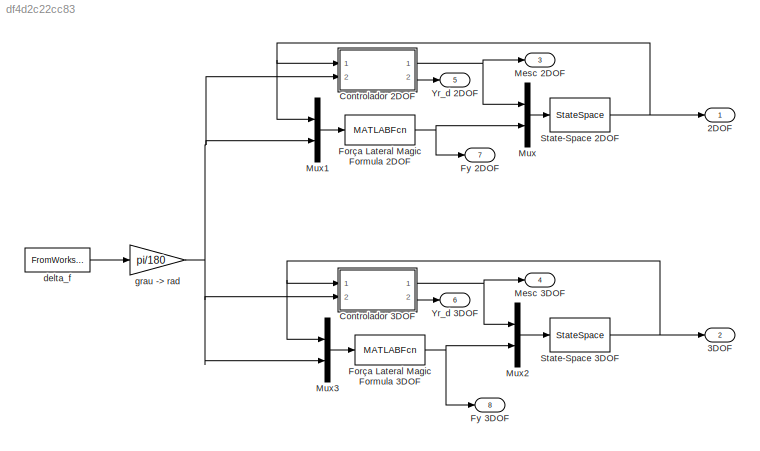
MODEL slx_df4d2c22cc83
KIND model
CONFIG AbsTol = auto
CONFIG FixedStep = auto
CONFIG MaxStep = auto
CONFIG MinStep = auto
CONFIG RelTol = 1e-3
CONFIG SampleTimeConstraint = Unconstrained
CONFIG Solver = VariableStepAuto
CONFIG SolverMode = Auto
CONFIG SolverName = VariableStepAuto
CONFIG StartTime = 0.0
CONFIG StopTime = 10
BLOCK [Outport] 2DOF
  IconDisplay = Port number
  LockScale = on
BLOCK [Outport] 3DOF
  IconDisplay = Port number
  Port = 2
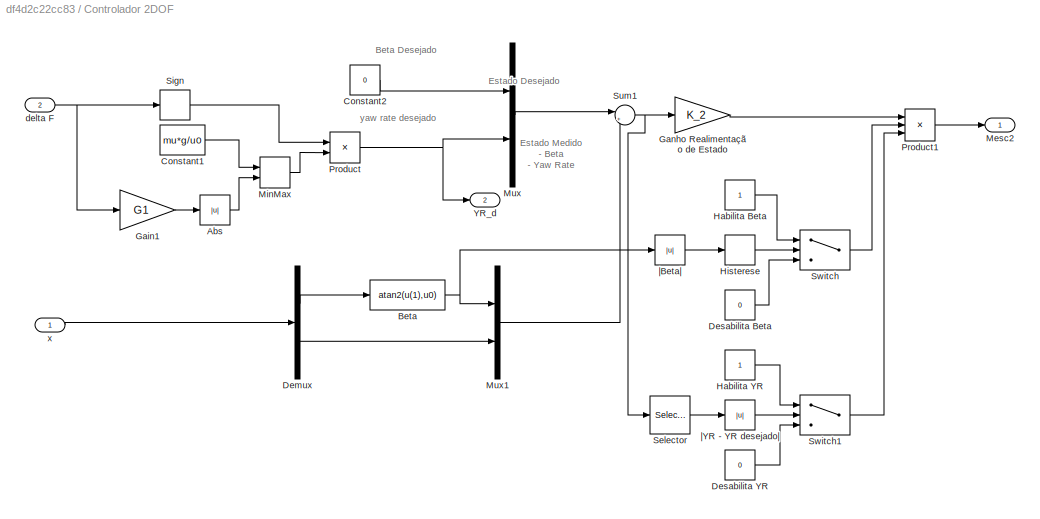
BLOCK [SubSystem] Controlador 2DOF
  Ports = [2, 2]
  RequestExecContextInheritance = off
  Variant = off
BLOCK [Abs] Controlador 2DOF/Abs
  SaturateOnIntegerOverflow = off
BLOCK [Fcn] Controlador 2DOF/Beta
  Expr = atan2(u(1),u0)
BLOCK [Constant] Controlador 2DOF/Constant1
  Value = mu*g/u0
BLOCK [Constant] Controlador 2DOF/Constant2
  Value = 0
BLOCK [Demux] Controlador 2DOF/Demux
  DisplayOption = bar
  Outputs = 2
  Ports = [1, 2]
BLOCK [Constant] Controlador 2DOF/Desabilita Beta
  Value = 0
BLOCK [Constant] Controlador 2DOF/Desabilita YR
  Value = 0
BLOCK [Gain] Controlador 2DOF/Gain1
  Gain = G1
  OutDataTypeStr = Inherit: Inherit via internal rule
  ParamDataTypeStr = Inherit: Inherit via internal rule
  SaturateOnIntegerOverflow = off
BLOCK [Gain] Controlador 2DOF/Ganho Realimentação de Estado
  Gain = K_2
  Multiplication = Matrix(K*u)
  OutDataTypeStr = Inherit: Inherit via internal rule
  ParamDataTypeStr = Inherit: Inherit via internal rule
  SaturateOnIntegerOverflow = off
BLOCK [Constant] Controlador 2DOF/Habilita Beta
BLOCK [Constant] Controlador 2DOF/Habilita YR
BLOCK [Relay] Controlador 2DOF/Histerese
  InputProcessing = Elements as channels (sample based)
  OffSwitchValue = limite_low
  OnSwitchValue = limite_high
BLOCK [Outport] Controlador 2DOF/Mesc2
  IconDisplay = Port number
BLOCK [MinMax] Controlador 2DOF/MinMax
  InputSameDT = off
  Inputs = 2
  Ports = [2, 1]
  SaturateOnIntegerOverflow = off
BLOCK [Mux] Controlador 2DOF/Mux
  DisplayOption = bar
  Inputs = 2
  Ports = [2, 1]
BLOCK [Mux] Controlador 2DOF/Mux1
  DisplayOption = bar
  Inputs = 2
  Ports = [2, 1]
BLOCK [Product] Controlador 2DOF/Product
  InputSameDT = off
  OutDataTypeStr = Inherit: Inherit via internal rule
  Ports = [2, 1]
  RndMeth = Floor
  SaturateOnIntegerOverflow = off
BLOCK [Product] Controlador 2DOF/Product1
  InputSameDT = off
  Inputs = 3
  OutDataTypeStr = Inherit: Inherit via internal rule
  Ports = [3, 1]
  RndMeth = Floor
  SaturateOnIntegerOverflow = off
BLOCK [Selector] Controlador 2DOF/Selector
  IndexOptions = Index vector (dialog)
  Indices = [2]
  InputPortWidth = 2
  OutputSizes = 1
  Ports = [1, 1]
BLOCK [Signum] Controlador 2DOF/Sign
BLOCK [Sum] Controlador 2DOF/Sum1
  IconShape = round
  InputSameDT = off
  Inputs = |+-
  OutDataTypeStr = Inherit: Inherit via internal rule
  Ports = [2, 1]
  SaturateOnIntegerOverflow = off
BLOCK [Switch] Controlador 2DOF/Switch
  Criteria = u2 > Threshold
  InputSameDT = off
  SaturateOnIntegerOverflow = off
  Threshold = limite_beta
BLOCK [Switch] Controlador 2DOF/Switch1
  Criteria = u2 > Threshold
  InputSameDT = off
  SaturateOnIntegerOverflow = off
  Threshold = limite_yaw
  ZeroCross = off
BLOCK [Outport] Controlador 2DOF/YR_d
  IconDisplay = Port number
  Port = 2
BLOCK [Inport] Controlador 2DOF/delta F
  IconDisplay = Port number
  Port = 2
BLOCK [Inport] Controlador 2DOF/x
  IconDisplay = Port number
BLOCK [Abs] Controlador 2DOF/|Beta|
  SaturateOnIntegerOverflow = off
BLOCK [Abs] Controlador 2DOF/|YR - YR desejado|
  SaturateOnIntegerOverflow = off
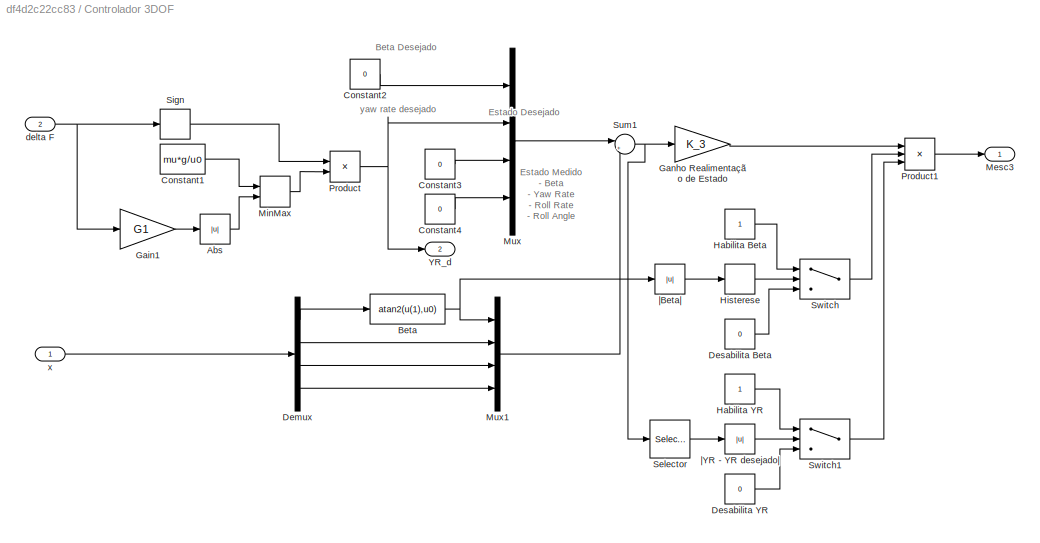
BLOCK [SubSystem] Controlador 3DOF
  Ports = [2, 2]
  RequestExecContextInheritance = off
  Variant = off
BLOCK [Abs] Controlador 3DOF/Abs
  SaturateOnIntegerOverflow = off
BLOCK [Fcn] Controlador 3DOF/Beta
  Expr = atan2(u(1),u0)
BLOCK [Constant] Controlador 3DOF/Constant1
  Value = mu*g/u0
BLOCK [Constant] Controlador 3DOF/Constant2
  Value = 0
BLOCK [Constant] Controlador 3DOF/Constant3
  Value = 0
BLOCK [Constant] Controlador 3DOF/Constant4
  Value = 0
BLOCK [Demux] Controlador 3DOF/Demux
  DisplayOption = bar
  Ports = [1, 4]
BLOCK [Constant] Controlador 3DOF/Desabilita Beta
  Value = 0
BLOCK [Constant] Controlador 3DOF/Desabilita YR
  Value = 0
BLOCK [Gain] Controlador 3DOF/Gain1
  Gain = G1
  OutDataTypeStr = Inherit: Inherit via internal rule
  ParamDataTypeStr = Inherit: Inherit via internal rule
  SaturateOnIntegerOverflow = off
BLOCK [Gain] Controlador 3DOF/Ganho Realimentação de Estado
  Gain = K_3
  Multiplication = Matrix(K*u)
  OutDataTypeStr = Inherit: Inherit via internal rule
  ParamDataTypeStr = Inherit: Inherit via internal rule
  SaturateOnIntegerOverflow = off
BLOCK [Constant] Controlador 3DOF/Habilita Beta
BLOCK [Constant] Controlador 3DOF/Habilita YR
BLOCK [Relay] Controlador 3DOF/Histerese
  InputProcessing = Elements as channels (sample based)
  OffSwitchValue = limite_low
  OnSwitchValue = limite_high
BLOCK [Outport] Controlador 3DOF/Mesc3
  IconDisplay = Port number
BLOCK [MinMax] Controlador 3DOF/MinMax
  InputSameDT = off
  Inputs = 2
  Ports = [2, 1]
  SaturateOnIntegerOverflow = off
BLOCK [Mux] Controlador 3DOF/Mux
  DisplayOption = bar
  Ports = [4, 1]
BLOCK [Mux] Controlador 3DOF/Mux1
  DisplayOption = bar
  Ports = [4, 1]
BLOCK [Product] Controlador 3DOF/Product
  InputSameDT = off
  OutDataTypeStr = Inherit: Inherit via internal rule
  Ports = [2, 1]
  RndMeth = Floor
  SaturateOnIntegerOverflow = off
BLOCK [Product] Controlador 3DOF/Product1
  InputSameDT = off
  Inputs = 3
  OutDataTypeStr = Inherit: Inherit via internal rule
  Ports = [3, 1]
  RndMeth = Floor
  SaturateOnIntegerOverflow = off
BLOCK [Selector] Controlador 3DOF/Selector
  IndexOptions = Index vector (dialog)
  Indices = [2]
  InputPortWidth = 4
  OutputSizes = 1
  Ports = [1, 1]
BLOCK [Signum] Controlador 3DOF/Sign
BLOCK [Sum] Controlador 3DOF/Sum1
  IconShape = round
  InputSameDT = off
  Inputs = |+-
  OutDataTypeStr = Inherit: Inherit via internal rule
  Ports = [2, 1]
  SaturateOnIntegerOverflow = off
BLOCK [Switch] Controlador 3DOF/Switch
  Criteria = u2 > Threshold
  InputSameDT = off
  SaturateOnIntegerOverflow = off
  Threshold = limite_beta
BLOCK [Switch] Controlador 3DOF/Switch1
  Criteria = u2 > Threshold
  InputSameDT = off
  SaturateOnIntegerOverflow = off
  Threshold = limite_yaw
  ZeroCross = off
BLOCK [Outport] Controlador 3DOF/YR_d
  IconDisplay = Port number
  Port = 2
BLOCK [Inport] Controlador 3DOF/delta F
  IconDisplay = Port number
  Port = 2
BLOCK [Inport] Controlador 3DOF/x
  IconDisplay = Port number
BLOCK [Abs] Controlador 3DOF/|Beta|
  SaturateOnIntegerOverflow = off
BLOCK [Abs] Controlador 3DOF/|YR - YR desejado|
  SaturateOnIntegerOverflow = off
BLOCK [MATLABFcn] Força Lateral Magic Formula 2DOF
  MATLABFcn = Modelo_MF_2DOF
  OutputDimensions = 2
  Ports = [1, 1]
BLOCK [MATLABFcn] Força Lateral Magic Formula 3DOF
  MATLABFcn = Modelo_MF_3DOF
  OutputDimensions = 2
  Ports = [1, 1]
BLOCK [Outport] Fy 2DOF
  IconDisplay = Port number
  LockScale = on
  Port = 7
BLOCK [Outport] Fy 3DOF
  IconDisplay = Port number
  LockScale = on
  Port = 8
BLOCK [Outport] Mesc 2DOF
  IconDisplay = Port number
  LockScale = on
  Port = 3
BLOCK [Outport] Mesc 3DOF
  IconDisplay = Port number
  LockScale = on
  Port = 4
BLOCK [Mux] Mux
  DisplayOption = bar
  Inputs = 2
  Ports = [2, 1]
BLOCK [Mux] Mux1
  DisplayOption = bar
  Inputs = 2
  Ports = [2, 1]
BLOCK [Mux] Mux2
  DisplayOption = bar
  Inputs = 2
  Ports = [2, 1]
BLOCK [Mux] Mux3
  DisplayOption = bar
  Inputs = 2
  Ports = [2, 1]
BLOCK [StateSpace] State-Space 2DOF
  A = A_2
  B = [Bu_2 Bw_2]
  C = eye(2)
  D = zeros(2,3)
  Ports = [1, 1]
  X0 = 0
BLOCK [StateSpace] State-Space 3DOF
  A = A_3
  B = [Bu_3 Bw_3]
  C = eye(4)
  D = zeros(4,3)
  Ports = [1, 1]
  X0 = 0
BLOCK [Outport] Yr_d 2DOF
  IconDisplay = Port number
  LockScale = on
  Port = 5
BLOCK [Outport] Yr_d 3DOF
  IconDisplay = Port number
  LockScale = on
  Port = 6
BLOCK [FromWorkspace] delta_f
  SampleTime = 0
  VariableName = delta_f
  ZeroCross = on
BLOCK [Gain] grau -> rad
  Gain = pi/180
  OutDataTypeStr = Inherit: Inherit via internal rule
  ParamDataTypeStr = Inherit: Inherit via internal rule
  SaturateOnIntegerOverflow = off
ANNOTATION Controlador 2DOF: Beta Desejado
ANNOTATION Controlador 2DOF: Estado Desejado
ANNOTATION Controlador 2DOF: Estado Medido - Beta - Yaw Rate
ANNOTATION Controlador 2DOF: yaw rate desejado
ANNOTATION Controlador 3DOF: Beta Desejado
ANNOTATION Controlador 3DOF: Estado Desejado
ANNOTATION Controlador 3DOF: Estado Medido - Beta - Yaw Rate - Roll Rate - Roll Angle
ANNOTATION Controlador 3DOF: yaw rate desejado
LINE Controlador 2DOF/Abs:1 -> Controlador 2DOF/MinMax:2
NET Controlador 2DOF/Beta:1 -> Controlador 2DOF/Mux1:1, Controlador 2DOF/|Beta|:1
LINE Controlador 2DOF/Constant1:1 -> Controlador 2DOF/MinMax:1
LINE Controlador 2DOF/Constant2:1 -> Controlador 2DOF/Mux:1
LINE Controlador 2DOF/Demux:1 -> Controlador 2DOF/Beta:1
LINE Controlador 2DOF/Demux:2 -> Controlador 2DOF/Mux1:2
LINE Controlador 2DOF/Desabilita Beta:1 -> Controlador 2DOF/Switch:3
LINE Controlador 2DOF/Desabilita YR:1 -> Controlador 2DOF/Switch1:3
LINE Controlador 2DOF/Gain1:1 -> Controlador 2DOF/Abs:1
LINE Controlador 2DOF/Ganho Realimentação de Estado:1 -> Controlador 2DOF/Product1:1
LINE Controlador 2DOF/Habilita Beta:1 -> Controlador 2DOF/Switch:1
LINE Controlador 2DOF/Habilita YR:1 -> Controlador 2DOF/Switch1:1
LINE Controlador 2DOF/Histerese:1 -> Controlador 2DOF/Switch:2
LINE Controlador 2DOF/MinMax:1 -> Controlador 2DOF/Product:2
LINE Controlador 2DOF/Mux1:1 -> Controlador 2DOF/Sum1:2
LINE Controlador 2DOF/Mux:1 -> Controlador 2DOF/Sum1:1
LINE Controlador 2DOF/Product1:1 -> Controlador 2DOF/Mesc2:1
NET Controlador 2DOF/Product:1 -> Controlador 2DOF/Mux:2, Controlador 2DOF/YR_d:1
LINE Controlador 2DOF/Selector:1 -> Controlador 2DOF/|YR - YR desejado|:1
LINE Controlador 2DOF/Sign:1 -> Controlador 2DOF/Product:1
NET Controlador 2DOF/Sum1:1 -> Controlador 2DOF/Ganho Realimentação de Estado:1, Controlador 2DOF/Selector:1
LINE Controlador 2DOF/Switch1:1 -> Controlador 2DOF/Product1:3
LINE Controlador 2DOF/Switch:1 -> Controlador 2DOF/Product1:2
NET Controlador 2DOF/delta F:1 -> Controlador 2DOF/Gain1:1, Controlador 2DOF/Sign:1
LINE Controlador 2DOF/x:1 -> Controlador 2DOF/Demux:1
LINE Controlador 2DOF/|Beta|:1 -> Controlador 2DOF/Histerese:1
LINE Controlador 2DOF/|YR - YR desejado|:1 -> Controlador 2DOF/Switch1:2
NET Controlador 2DOF:1 -> Mesc 2DOF:1, Mux:1
LINE Controlador 2DOF:2 -> Yr_d 2DOF:1
LINE Controlador 3DOF/Abs:1 -> Controlador 3DOF/MinMax:2
NET Controlador 3DOF/Beta:1 -> Controlador 3DOF/Mux1:1, Controlador 3DOF/|Beta|:1
LINE Controlador 3DOF/Constant1:1 -> Controlador 3DOF/MinMax:1
LINE Controlador 3DOF/Constant2:1 -> Controlador 3DOF/Mux:1
LINE Controlador 3DOF/Constant3:1 -> Controlador 3DOF/Mux:3
LINE Controlador 3DOF/Constant4:1 -> Controlador 3DOF/Mux:4
LINE Controlador 3DOF/Demux:1 -> Controlador 3DOF/Beta:1
LINE Controlador 3DOF/Demux:2 -> Controlador 3DOF/Mux1:2
LINE Controlador 3DOF/Demux:3 -> Controlador 3DOF/Mux1:3
LINE Controlador 3DOF/Demux:4 -> Controlador 3DOF/Mux1:4
LINE Controlador 3DOF/Desabilita Beta:1 -> Controlador 3DOF/Switch:3
LINE Controlador 3DOF/Desabilita YR:1 -> Controlador 3DOF/Switch1:3
LINE Controlador 3DOF/Gain1:1 -> Controlador 3DOF/Abs:1
LINE Controlador 3DOF/Ganho Realimentação de Estado:1 -> Controlador 3DOF/Product1:1
LINE Controlador 3DOF/Habilita Beta:1 -> Controlador 3DOF/Switch:1
LINE Controlador 3DOF/Habilita YR:1 -> Controlador 3DOF/Switch1:1
LINE Controlador 3DOF/Histerese:1 -> Controlador 3DOF/Switch:2
LINE Controlador 3DOF/MinMax:1 -> Controlador 3DOF/Product:2
LINE Controlador 3DOF/Mux1:1 -> Controlador 3DOF/Sum1:2
LINE Controlador 3DOF/Mux:1 -> Controlador 3DOF/Sum1:1
LINE Controlador 3DOF/Product1:1 -> Controlador 3DOF/Mesc3:1
NET Controlador 3DOF/Product:1 -> Controlador 3DOF/Mux:2, Controlador 3DOF/YR_d:1
LINE Controlador 3DOF/Selector:1 -> Controlador 3DOF/|YR - YR desejado|:1
LINE Controlador 3DOF/Sign:1 -> Controlador 3DOF/Product:1
NET Controlador 3DOF/Sum1:1 -> Controlador 3DOF/Ganho Realimentação de Estado:1, Controlador 3DOF/Selector:1
LINE Controlador 3DOF/Switch1:1 -> Controlador 3DOF/Product1:3
LINE Controlador 3DOF/Switch:1 -> Controlador 3DOF/Product1:2
NET Controlador 3DOF/delta F:1 -> Controlador 3DOF/Gain1:1, Controlador 3DOF/Sign:1
LINE Controlador 3DOF/x:1 -> Controlador 3DOF/Demux:1
LINE Controlador 3DOF/|Beta|:1 -> Controlador 3DOF/Histerese:1
LINE Controlador 3DOF/|YR - YR desejado|:1 -> Controlador 3DOF/Switch1:2
NET Controlador 3DOF:1 -> Mesc 3DOF:1, Mux2:1
LINE Controlador 3DOF:2 -> Yr_d 3DOF:1
NET Força Lateral Magic Formula 2DOF:1 -> Fy 2DOF:1, Mux:2
NET Força Lateral Magic Formula 3DOF:1 -> Fy 3DOF:1, Mux2:2
LINE Mux1:1 -> Força Lateral Magic Formula 2DOF:1
LINE Mux2:1 -> State-Space 3DOF:1
LINE Mux3:1 -> Força Lateral Magic Formula 3DOF:1
LINE Mux:1 -> State-Space 2DOF:1
NET State-Space 2DOF:1 -> 2DOF:1, Controlador 2DOF:1, Mux1:1
NET State-Space 3DOF:1 -> 3DOF:1, Controlador 3DOF:1, Mux3:1
LINE delta_f:1 -> grau -> rad:1
NET grau -> rad:1 -> Controlador 2DOF:2, Controlador 3DOF:2, Mux1:2, Mux3:2
note: NET lines group one-source signal fan-out (src -> all destinations, sorted); 1:1 wires keep LINE
